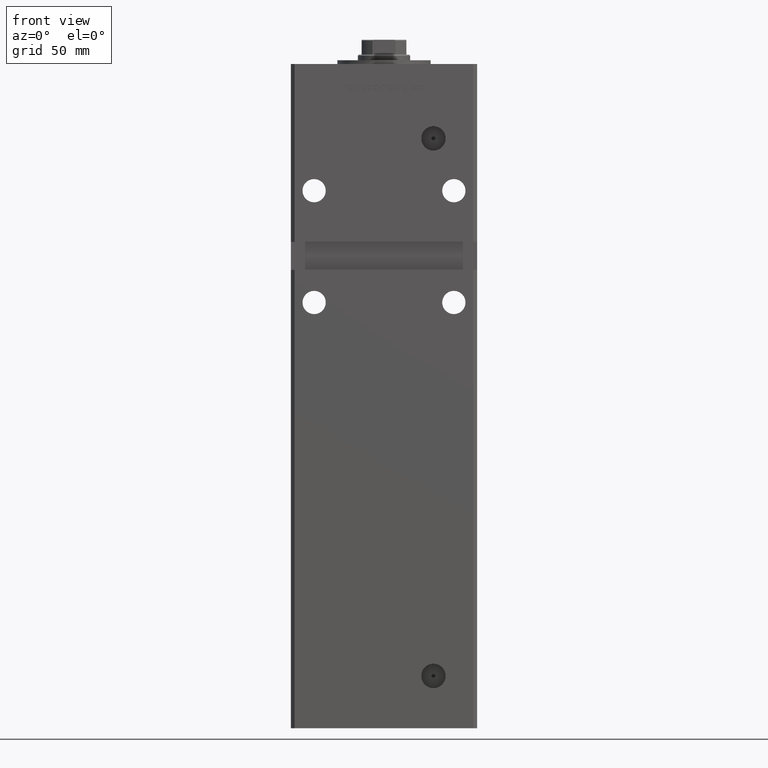
[diagram: clean part render]
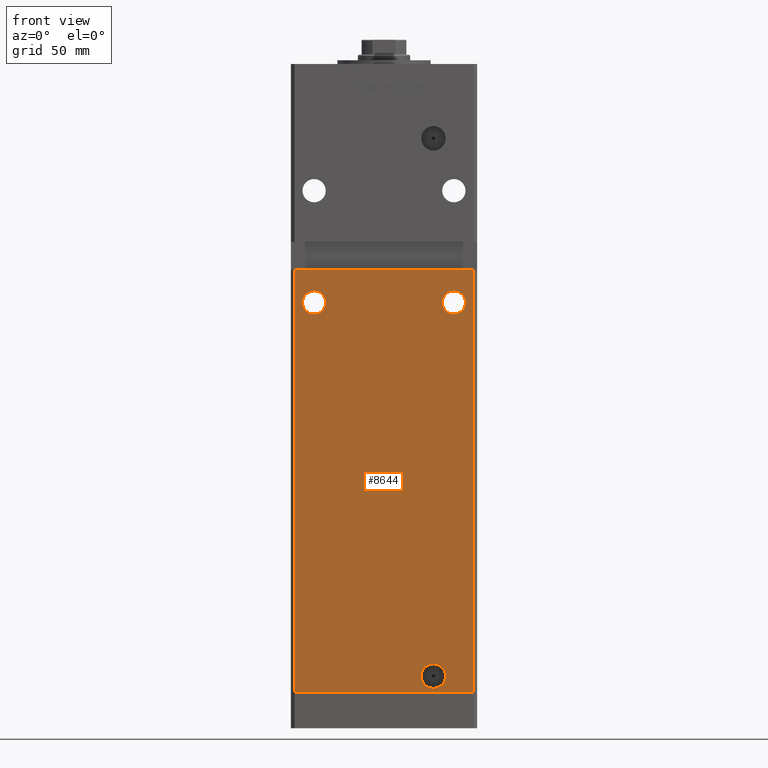
[diagram: same view with one face highlighted and labeled with its STEP entity id]
A machine part, front view. The second image highlights one B-rep face of the part: STEP entity #8644.
In plain terms, the highlighted planar face has unit normal (0, 1, 0).
Its self-contained STEP definition (entity closure, byte-faithful):
#432 = DIRECTION ( 'NONE',  ( 0.000000000000000000, -0.000000000000000000, 1.000000000000000000 ) ) ;
#531 = DIRECTION ( 'NONE',  ( 0.000000000000000000, 0.000000000000000000, 1.000000000000000000 ) ) ;
#1393 = DIRECTION ( 'NONE',  ( -0.000000000000000000, -0.000000000000000000, -1.000000000000000000 ) ) ;
#1690 = CIRCLE ( 'NONE', #41174, 6.250000000000005329 ) ;
#1828 = EDGE_LOOP ( 'NONE', ( #21646, #16203 ) ) ;
#2620 = VERTEX_POINT ( 'NONE', #11354 ) ;
#3157 = CARTESIAN_POINT ( 'NONE',  ( 47.99999999999998579, -43.50000000000000000, 226.9999999999999716 ) ) ;
#4397 = DIRECTION ( 'NONE',  ( 0.000000000000000000, -1.000000000000000000, 0.000000000000000000 ) ) ;
#5049 = VERTEX_POINT ( 'NONE', #17880 ) ;
#5116 = EDGE_LOOP ( 'NONE', ( #17878, #49367 ) ) ;
#5385 = AXIS2_PLACEMENT_3D ( 'NONE', #36190, #8007, #11220 ) ;
#6827 = AXIS2_PLACEMENT_3D ( 'NONE', #28015, #48170, #19429 ) ;
#6971 = CARTESIAN_POINT ( 'NONE',  ( 37.50000000000000000, -43.50000000000000000, 215.7500000000000000 ) ) ;
#7774 = CIRCLE ( 'NONE', #36091, 6.579999999999994742 ) ;
#8007 = DIRECTION ( 'NONE',  ( 0.000000000000000000, 1.000000000000000000, 0.000000000000000000 ) ) ;
#8089 = EDGE_CURVE ( 'NONE', #37169, #26667, #7774, .T. ) ;
#8644 = ADVANCED_FACE ( 'NONE', ( #25915, #49591, #46336, #33705 ), #38264, .F. ) ;
#9392 = CIRCLE ( 'NONE', #6827, 6.250000000000005329 ) ;
#9695 = VERTEX_POINT ( 'NONE', #30224 ) ;
#10309 = DIRECTION ( 'NONE',  ( 0.000000000000000000, 0.000000000000000000, 1.000000000000000000 ) ) ;
#10334 = LINE ( 'NONE', #26722, #21835 ) ;
#10837 = DIRECTION ( 'NONE',  ( 0.000000000000000000, 1.000000000000000000, 0.000000000000000000 ) ) ;
#11220 = DIRECTION ( 'NONE',  ( 0.000000000000000000, 0.000000000000000000, 1.000000000000000000 ) ) ;
#11354 = CARTESIAN_POINT ( 'NONE',  ( -47.99999999999998579, -43.50000000000000000, 226.9999999999999716 ) ) ;
#11736 = EDGE_LOOP ( 'NONE', ( #28593, #13778 ) ) ;
#13056 = DIRECTION ( 'NONE',  ( 0.000000000000000000, 1.000000000000000000, 0.000000000000000000 ) ) ;
#13778 = ORIENTED_EDGE ( 'NONE', *, *, #47917, .T. ) ;
#15054 = EDGE_CURVE ( 'NONE', #26667, #37169, #25026, .T. ) ;
#15927 = VERTEX_POINT ( 'NONE', #50780 ) ;
#16203 = ORIENTED_EDGE ( 'NONE', *, *, #8089, .F. ) ;
#16285 = EDGE_CURVE ( 'NONE', #2620, #34962, #24308, .T. ) ;
#16547 = DIRECTION ( 'NONE',  ( 0.000000000000000000, 0.000000000000000000, -1.000000000000000000 ) ) ;
#17878 = ORIENTED_EDGE ( 'NONE', *, *, #52901, .T. ) ;
#17880 = CARTESIAN_POINT ( 'NONE',  ( 47.99999999999998579, -43.50000000000000000, 0.000000000000000000 ) ) ;
#17889 = EDGE_CURVE ( 'NONE', #23366, #20873, #28575, .T. ) ;
#18090 = ORIENTED_EDGE ( 'NONE', *, *, #27771, .T. ) ;
#18506 = EDGE_CURVE ( 'NONE', #34962, #5049, #50039, .T. ) ;
#19429 = DIRECTION ( 'NONE',  ( 0.000000000000000000, 0.000000000000000000, 1.000000000000000000 ) ) ;
#20141 = ORIENTED_EDGE ( 'NONE', *, *, #29887, .T. ) ;
#20276 = CARTESIAN_POINT ( 'NONE',  ( -49.99999999999998579, -43.50000000000000000, 226.9999999999999716 ) ) ;
#20434 = CARTESIAN_POINT ( 'NONE',  ( -37.50000000000000000, -43.50000000000000000, 209.5000000000000000 ) ) ;
#20873 = VERTEX_POINT ( 'NONE', #49994 ) ;
#21646 = ORIENTED_EDGE ( 'NONE', *, *, #15054, .F. ) ;
#21835 = VECTOR ( 'NONE', #34235, 1000.000000000000000 ) ;
#23366 = VERTEX_POINT ( 'NONE', #6971 ) ;
#24308 = LINE ( 'NONE', #20276, #49077 ) ;
#25026 = CIRCLE ( 'NONE', #38723, 6.579999999999994742 ) ;
#25353 = CARTESIAN_POINT ( 'NONE',  ( 26.49999999999998934, -43.50000000000000000, 9.000000000000007105 ) ) ;
#25404 = VERTEX_POINT ( 'NONE', #43865 ) ;
#25569 = CARTESIAN_POINT ( 'NONE',  ( 47.99999999999998579, -43.50000000000000000, 318.5000000000000000 ) ) ;
#25915 = FACE_BOUND ( 'NONE', #5116, .T. ) ;
#25945 = VECTOR ( 'NONE', #1393, 1000.000000000000000 ) ;
#26667 = VERTEX_POINT ( 'NONE', #45879 ) ;
#26722 = CARTESIAN_POINT ( 'NONE',  ( -47.99999999999998579, -43.50000000000000000, 0.000000000000000000 ) ) ;
#27771 = EDGE_CURVE ( 'NONE', #15927, #5049, #10334, .T. ) ;
#27988 = ORIENTED_EDGE ( 'NONE', *, *, #18506, .F. ) ;
#28015 = CARTESIAN_POINT ( 'NONE',  ( -37.50000000000000000, -43.50000000000000000, 209.5000000000000000 ) ) ;
#28575 = CIRCLE ( 'NONE', #5385, 6.250000000000005329 ) ;
#28593 = ORIENTED_EDGE ( 'NONE', *, *, #17889, .T. ) ;
#29887 = EDGE_CURVE ( 'NONE', #2620, #15927, #52023, .T. ) ;
#30224 = CARTESIAN_POINT ( 'NONE',  ( -37.50000000000000000, -43.50000000000000000, 215.7500000000000000 ) ) ;
#32449 = AXIS2_PLACEMENT_3D ( 'NONE', #20434, #36808, #531 ) ;
#33705 = FACE_OUTER_BOUND ( 'NONE', #36237, .T. ) ;
#34235 = DIRECTION ( 'NONE',  ( 1.000000000000000000, 0.000000000000000000, 0.000000000000000000 ) ) ;
#34962 = VERTEX_POINT ( 'NONE', #3157 ) ;
#36091 = AXIS2_PLACEMENT_3D ( 'NONE', #41713, #4397, #41199 ) ;
#36142 = DIRECTION ( 'NONE',  ( -0.000000000000000000, -0.000000000000000000, -1.000000000000000000 ) ) ;
#36190 = CARTESIAN_POINT ( 'NONE',  ( 37.50000000000000000, -43.50000000000000000, 209.5000000000000000 ) ) ;
#36237 = EDGE_LOOP ( 'NONE', ( #27988, #52583, #20141, #18090 ) ) ;
#36808 = DIRECTION ( 'NONE',  ( 0.000000000000000000, 1.000000000000000000, 0.000000000000000000 ) ) ;
#37169 = VERTEX_POINT ( 'NONE', #39184 ) ;
#37198 = DIRECTION ( 'NONE',  ( 0.000000000000000000, -1.000000000000000000, 0.000000000000000000 ) ) ;
#38264 = PLANE ( 'NONE',  #51528 ) ;
#38723 = AXIS2_PLACEMENT_3D ( 'NONE', #25353, #37198, #16547 ) ;
#39184 = CARTESIAN_POINT ( 'NONE',  ( 26.49999999999998934, -43.50000000000000000, 15.58000000000000362 ) ) ;
#40155 = CIRCLE ( 'NONE', #32449, 6.250000000000005329 ) ;
#40451 = CARTESIAN_POINT ( 'NONE',  ( -47.99999999999998579, -43.50000000000000000, 318.5000000000000000 ) ) ;
#40689 = DIRECTION ( 'NONE',  ( 1.000000000000000000, 0.000000000000000000, 0.000000000000000000 ) ) ;
#41174 = AXIS2_PLACEMENT_3D ( 'NONE', #43620, #10837, #10309 ) ;
#41199 = DIRECTION ( 'NONE',  ( 0.000000000000000000, 0.000000000000000000, -1.000000000000000000 ) ) ;
#41713 = CARTESIAN_POINT ( 'NONE',  ( 26.49999999999998934, -43.50000000000000000, 9.000000000000007105 ) ) ;
#43620 = CARTESIAN_POINT ( 'NONE',  ( 37.50000000000000000, -43.50000000000000000, 209.5000000000000000 ) ) ;
#43676 = EDGE_CURVE ( 'NONE', #25404, #9695, #40155, .T. ) ;
#43865 = CARTESIAN_POINT ( 'NONE',  ( -37.50000000000000000, -43.50000000000000000, 203.2500000000000000 ) ) ;
#45879 = CARTESIAN_POINT ( 'NONE',  ( 26.49999999999998934, -43.50000000000000000, 2.420000000000013252 ) ) ;
#46336 = FACE_BOUND ( 'NONE', #1828, .T. ) ;
#47644 = VECTOR ( 'NONE', #36142, 1000.000000000000000 ) ;
#47917 = EDGE_CURVE ( 'NONE', #20873, #23366, #1690, .T. ) ;
#48170 = DIRECTION ( 'NONE',  ( 0.000000000000000000, 1.000000000000000000, 0.000000000000000000 ) ) ;
#49077 = VECTOR ( 'NONE', #40689, 1000.000000000000000 ) ;
#49367 = ORIENTED_EDGE ( 'NONE', *, *, #43676, .T. ) ;
#49591 = FACE_BOUND ( 'NONE', #11736, .T. ) ;
#49994 = CARTESIAN_POINT ( 'NONE',  ( 37.50000000000000000, -43.50000000000000000, 203.2500000000000000 ) ) ;
#50039 = LINE ( 'NONE', #25569, #25945 ) ;
#50369 = CARTESIAN_POINT ( 'NONE',  ( -47.99999999999998579, -43.50000000000000000, 318.5000000000000000 ) ) ;
#50780 = CARTESIAN_POINT ( 'NONE',  ( -47.99999999999998579, -43.50000000000000000, 0.000000000000000000 ) ) ;
#51528 = AXIS2_PLACEMENT_3D ( 'NONE', #50369, #13056, #432 ) ;
#52023 = LINE ( 'NONE', #40451, #47644 ) ;
#52583 = ORIENTED_EDGE ( 'NONE', *, *, #16285, .F. ) ;
#52901 = EDGE_CURVE ( 'NONE', #9695, #25404, #9392, .T. ) ;